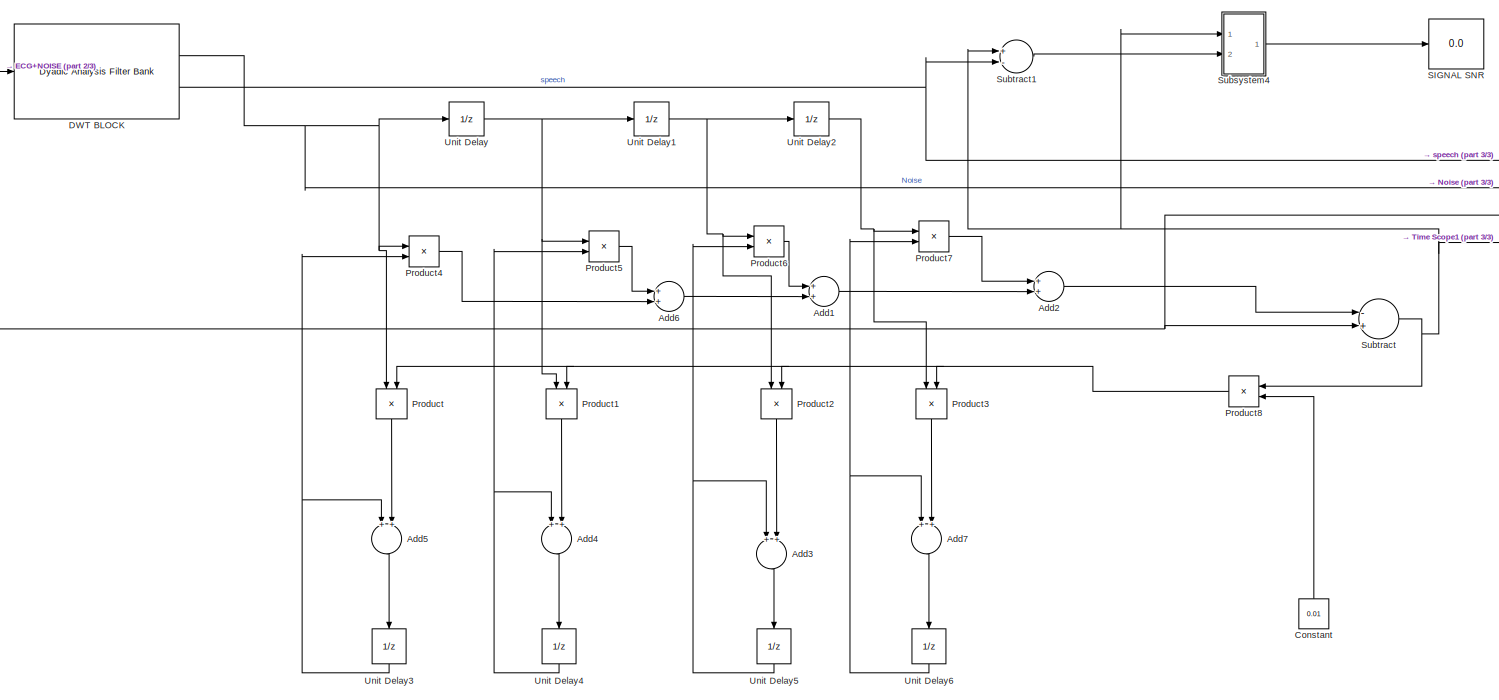
[diagram: root canvas - part 1/3, most of the canvas]
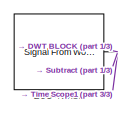
[diagram: root canvas - part 2/3, top left region]
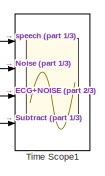
[diagram: root canvas - part 3/3, top right region]
MODEL slx_7f04db60fa2a
KIND model
CONFIG AbsTol = auto
CONFIG FixedStep = auto
CONFIG MaxStep = auto
CONFIG MinStep = auto
CONFIG RelTol = 1e-3
CONFIG SampleTimeConstraint = Unconstrained
CONFIG Solver = VariableStepAuto
CONFIG SolverMode = Auto
CONFIG SolverName = VariableStepAuto
CONFIG StartTime = 0.0
CONFIG StopTime = 4000
BLOCK [Sum] Add1
  InputSameDT = off
  OutDataTypeStr = Inherit: Inherit via internal rule
  Ports = [2, 1]
  SaturateOnIntegerOverflow = off
BLOCK [Sum] Add2
  InputSameDT = off
  OutDataTypeStr = Inherit: Inherit via internal rule
  Ports = [2, 1]
  SaturateOnIntegerOverflow = off
BLOCK [Sum] Add3
  InputSameDT = off
  OutDataTypeStr = Inherit: Inherit via internal rule
  Ports = [2, 1]
  SaturateOnIntegerOverflow = off
BLOCK [Sum] Add4
  InputSameDT = off
  OutDataTypeStr = Inherit: Inherit via internal rule
  Ports = [2, 1]
  SaturateOnIntegerOverflow = off
BLOCK [Sum] Add5
  InputSameDT = off
  OutDataTypeStr = Inherit: Inherit via internal rule
  Ports = [2, 1]
  SaturateOnIntegerOverflow = off
BLOCK [Sum] Add6
  InputSameDT = off
  OutDataTypeStr = Inherit: Inherit via internal rule
  Ports = [2, 1]
  SaturateOnIntegerOverflow = off
BLOCK [Sum] Add7
  InputSameDT = off
  OutDataTypeStr = Inherit: Inherit via internal rule
  Ports = [2, 1]
  SaturateOnIntegerOverflow = off
BLOCK [Constant] Constant
  Value = 0.01
BLOCK [Reference] DWT BLOCK  REF=dspmlti4/Dyadic Analysis
Filter Bank
  Ports = [1, 2]
  SourceBlock = dspmlti4/Dyadic Analysis\nFilter Bank
  SourceType = Dyadic Analysis Filter Bank
BLOCK [Reference] ECG+NOISE  REF=dspsrcs4/Signal From
Workspace
  Ports = [0, 1]
  SourceBlock = dspsrcs4/Signal From\nWorkspace
  SourceType = Signal From Workspace
BLOCK [Product] Product
  InputSameDT = off
  OutDataTypeStr = Inherit: Inherit via internal rule
  Ports = [2, 1]
  RndMeth = Floor
  SaturateOnIntegerOverflow = off
BLOCK [Product] Product1
  InputSameDT = off
  OutDataTypeStr = Inherit: Inherit via internal rule
  Ports = [2, 1]
  RndMeth = Floor
  SaturateOnIntegerOverflow = off
BLOCK [Product] Product2
  InputSameDT = off
  OutDataTypeStr = Inherit: Inherit via internal rule
  Ports = [2, 1]
  RndMeth = Floor
  SaturateOnIntegerOverflow = off
BLOCK [Product] Product3
  InputSameDT = off
  OutDataTypeStr = Inherit: Inherit via internal rule
  Ports = [2, 1]
  RndMeth = Floor
  SaturateOnIntegerOverflow = off
BLOCK [Product] Product4
  InputSameDT = off
  OutDataTypeStr = Inherit: Inherit via internal rule
  Ports = [2, 1]
  RndMeth = Floor
  SaturateOnIntegerOverflow = off
BLOCK [Product] Product5
  InputSameDT = off
  OutDataTypeStr = Inherit: Inherit via internal rule
  Ports = [2, 1]
  RndMeth = Floor
  SaturateOnIntegerOverflow = off
BLOCK [Product] Product6
  InputSameDT = off
  OutDataTypeStr = Inherit: Inherit via internal rule
  Ports = [2, 1]
  RndMeth = Floor
  SaturateOnIntegerOverflow = off
BLOCK [Product] Product7
  InputSameDT = off
  OutDataTypeStr = Inherit: Inherit via internal rule
  Ports = [2, 1]
  RndMeth = Floor
  SaturateOnIntegerOverflow = off
BLOCK [Product] Product8
  InputSameDT = off
  OutDataTypeStr = Inherit: Inherit via internal rule
  Ports = [2, 1]
  RndMeth = Floor
  SaturateOnIntegerOverflow = off
BLOCK [Display] SIGNAL SNR 
  Decimation = 1
  Ports = [1]
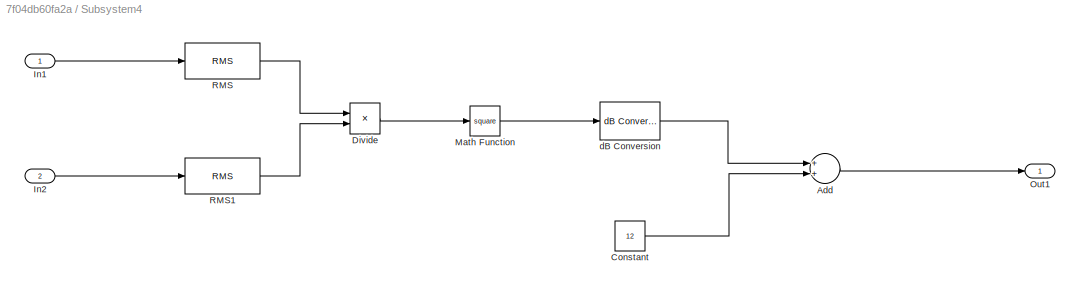
BLOCK [SubSystem] Subsystem4
  Ports = [2, 1]
  RequestExecContextInheritance = off
  Variant = off
BLOCK [Sum] Subsystem4/Add
  InputSameDT = off
  OutDataTypeStr = Inherit: Inherit via internal rule
  Ports = [2, 1]
  SaturateOnIntegerOverflow = off
BLOCK [Constant] Subsystem4/Constant
  Value = 12
BLOCK [Product] Subsystem4/Divide
  InputSameDT = off
  Inputs = */
  OutDataTypeStr = Inherit: Inherit via internal rule
  Ports = [2, 1]
  RndMeth = Floor
  SaturateOnIntegerOverflow = off
BLOCK [Inport] Subsystem4/In1
  IconDisplay = Port number
  VarSizeSig = No
BLOCK [Inport] Subsystem4/In2
  IconDisplay = Port number
  Port = 2
BLOCK [Math] Subsystem4/Math Function
  Operator = square
  OutputSignalType = real
  Ports = [1, 1]
BLOCK [Outport] Subsystem4/Out1
  IconDisplay = Port number
BLOCK [Reference] Subsystem4/RMS  REF=dspstat3/RMS
  Ports = [1, 1]
  SourceBlock = dspstat3/RMS
  SourceType = RMS
  UserDataPersistent = on
BLOCK [Reference] Subsystem4/RMS1  REF=dspstat3/RMS
  Ports = [1, 1]
  SourceBlock = dspstat3/RMS
  SourceType = RMS
  UserDataPersistent = on
BLOCK [Reference] Subsystem4/dB Conversion  REF=dspmathops/dB Conversion
  Ports = [1, 1]
  SourceBlock = dspmathops/dB Conversion
  SourceType = dB Conversion
BLOCK [Sum] Subtract
  InputSameDT = off
  Inputs = -+
  OutDataTypeStr = Inherit: Inherit via internal rule
  Ports = [2, 1]
  SaturateOnIntegerOverflow = off
BLOCK [Sum] Subtract1
  InputSameDT = off
  Inputs = +-
  OutDataTypeStr = Inherit: Inherit via internal rule
  Ports = [2, 1]
  SaturateOnIntegerOverflow = off
BLOCK [Scope] Time Scope1
  DefaultConfigurationName = spbscopes.TimeScopeBlockCfg
  NumInputPorts = 4
  Ports = [4]
  ScopeSpecificationString = spbscopes.TimeScopeBlockCfg('CurrentConfiguration', extmgr.ConfigurationSet(extmgr.Configuration('Core','General UI',true),extmgr.Configuration('Core','Source UI',true),extmgr.Configuration('Sources','WiredSimulink',true),extmgr.Configuration('Visuals','Time Domain',true,'DisplayLayoutDimensions',[4 1],'DisplayPropertyDefaults',struct('YLabelReal','Amplitude','LegendVisibility','off','XGrid',true,...<+3418ch>
  UserDataPersistent = on
BLOCK [UnitDelay] Unit Delay
  InputProcessing = Elements as channels (sample based)
  SampleTime = -1
BLOCK [UnitDelay] Unit Delay1
  InputProcessing = Elements as channels (sample based)
  SampleTime = -1
BLOCK [UnitDelay] Unit Delay2
  InputProcessing = Elements as channels (sample based)
  SampleTime = -1
BLOCK [UnitDelay] Unit Delay3
  InputProcessing = Elements as channels (sample based)
  SampleTime = -1
BLOCK [UnitDelay] Unit Delay4
  InputProcessing = Elements as channels (sample based)
  SampleTime = -1
BLOCK [UnitDelay] Unit Delay5
  InputProcessing = Elements as channels (sample based)
  SampleTime = -1
BLOCK [UnitDelay] Unit Delay6
  InputProcessing = Elements as channels (sample based)
  SampleTime = -1
LINE Add1:1 -> Add2:2
LINE Add2:1 -> Subtract:1
LINE Add3:1 -> Unit Delay5:1
LINE Add4:1 -> Unit Delay4:1
LINE Add5:1 -> Unit Delay3:1
LINE Add6:1 -> Add1:2
LINE Add7:1 -> Unit Delay6:1
LINE Constant:1 -> Product8:2
NET DWT BLOCK:1 -> Product4:1, Product:1, Time Scope1:2, Unit Delay:1
NET DWT BLOCK:2 -> Subtract1:2, Time Scope1:1
NET ECG+NOISE:1 -> DWT BLOCK:1, Subtract:2, Time Scope1:3
LINE Product1:1 -> Add4:2
LINE Product2:1 -> Add3:2
LINE Product3:1 -> Add7:2
LINE Product4:1 -> Add6:2
LINE Product5:1 -> Add6:1
LINE Product6:1 -> Add1:1
LINE Product7:1 -> Add2:1
NET Product8:1 -> Product1:2, Product2:2, Product3:2, Product:2
LINE Product:1 -> Add5:2
LINE Subsystem4/Add:1 -> Subsystem4/Out1:1
LINE Subsystem4/Constant:1 -> Subsystem4/Add:2
LINE Subsystem4/Divide:1 -> Subsystem4/Math Function:1
LINE Subsystem4/In1:1 -> Subsystem4/RMS:1
LINE Subsystem4/In2:1 -> Subsystem4/RMS1:1
LINE Subsystem4/Math Function:1 -> Subsystem4/dB Conversion:1
LINE Subsystem4/RMS1:1 -> Subsystem4/Divide:2
LINE Subsystem4/RMS:1 -> Subsystem4/Divide:1
LINE Subsystem4/dB Conversion:1 -> Subsystem4/Add:1
LINE Subsystem4:1 -> SIGNAL SNR :1
LINE Subtract1:1 -> Subsystem4:2
NET Subtract:1 -> Product8:1, Subsystem4:1, Subtract1:1, Time Scope1:4
NET Unit Delay1:1 -> Product2:1, Product6:1, Unit Delay2:1
NET Unit Delay2:1 -> Product3:1, Product7:1
NET Unit Delay3:1 -> Add5:1, Product4:2
NET Unit Delay4:1 -> Add4:1, Product5:2
NET Unit Delay5:1 -> Add3:1, Product6:2
NET Unit Delay6:1 -> Add7:1, Product7:2
NET Unit Delay:1 -> Product1:1, Product5:1, Unit Delay1:1
note: NET lines group one-source signal fan-out (src -> all destinations, sorted); 1:1 wires keep LINE
